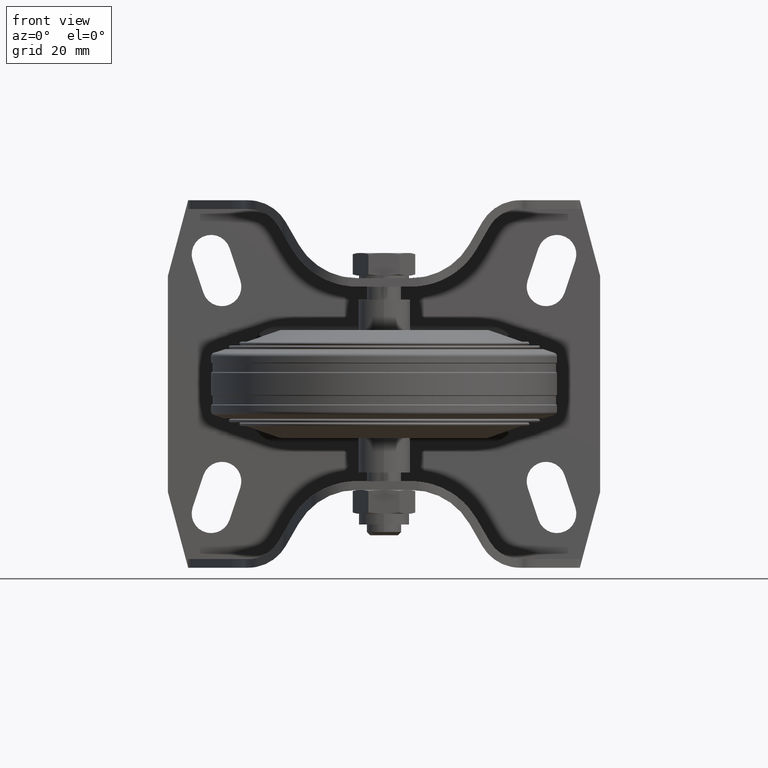
[diagram: clean part render]
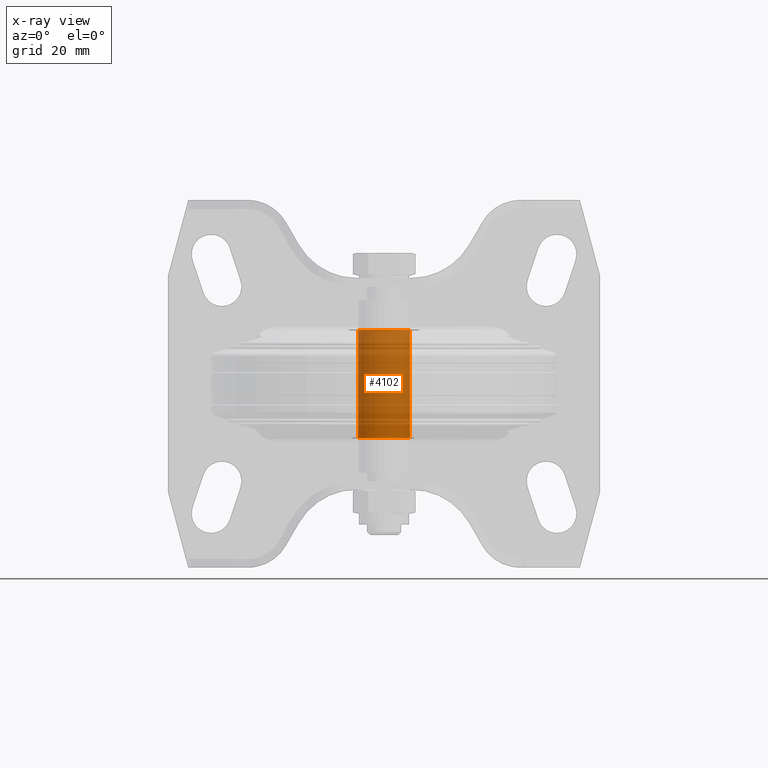
[diagram: x-ray — body ghosted, one internal face saturated and labeled with its STEP entity id]
A machine part, front view, then the same camera in x-ray: the body is ghosted and one INTERNAL B-rep face — a face not visible from any outside direction — is saturated and labeled: STEP entity #4102.
In plain terms, the highlighted cylindrical surface (bore or boss wall) has radius 6 mm, axis along (0, 0, -1).
Its self-contained STEP definition (entity closure, byte-faithful):
#569=LINE('',#7485,#836);
#836=VECTOR('',#5942,6.);
#914=CYLINDRICAL_SURFACE('',#4698,6.);
#1156=FACE_OUTER_BOUND('',#1431,.T.);
#1431=EDGE_LOOP('',(#3820,#3821,#3822,#3823));
#1633=CIRCLE('',#4685,6.);
#1640=CIRCLE('',#4697,6.);
#2054=VERTEX_POINT('',#7463);
#2059=VERTEX_POINT('',#7482);
#2637=EDGE_CURVE('',#2054,#2054,#1633,.T.);
#2646=EDGE_CURVE('',#2059,#2059,#1640,.T.);
#2647=EDGE_CURVE('',#2059,#2054,#569,.T.);
#3820=ORIENTED_EDGE('',*,*,#2646,.F.);
#3821=ORIENTED_EDGE('',*,*,#2647,.T.);
#3822=ORIENTED_EDGE('',*,*,#2637,.T.);
#3823=ORIENTED_EDGE('',*,*,#2647,.F.);
#4102=ADVANCED_FACE('',(#1156),#914,.F.);
#4685=AXIS2_PLACEMENT_3D('',#7464,#5912,#5913);
#4697=AXIS2_PLACEMENT_3D('',#7483,#5938,#5939);
#4698=AXIS2_PLACEMENT_3D('',#7484,#5940,#5941);
#5912=DIRECTION('center_axis',(9.67594767453727E-17,0.,-1.));
#5913=DIRECTION('ref_axis',(-1.,0.,-9.67594767453727E-17));
#5938=DIRECTION('center_axis',(9.67594767453727E-17,0.,-1.));
#5939=DIRECTION('ref_axis',(-1.,0.,-9.67594767453727E-17));
#5940=DIRECTION('center_axis',(6.12323399573677E-17,0.,-1.));
#5941=DIRECTION('ref_axis',(-1.,0.,-6.12323399573677E-17));
#5942=DIRECTION('',(6.12323399573677E-17,0.,-1.));
#7463=CARTESIAN_POINT('',(6.,-7.34788079488412E-16,-12.5));
#7464=CARTESIAN_POINT('Origin',(1.20949345931716E-15,0.,-12.5));
#7482=CARTESIAN_POINT('',(6.,-7.34788079488412E-16,12.5));
#7483=CARTESIAN_POINT('Origin',(-1.20949345931716E-15,0.,12.5));
#7484=CARTESIAN_POINT('Origin',(7.65404249467096E-16,0.,-12.5));
#7485=CARTESIAN_POINT('',(6.,-7.34788079488412E-16,-12.5));